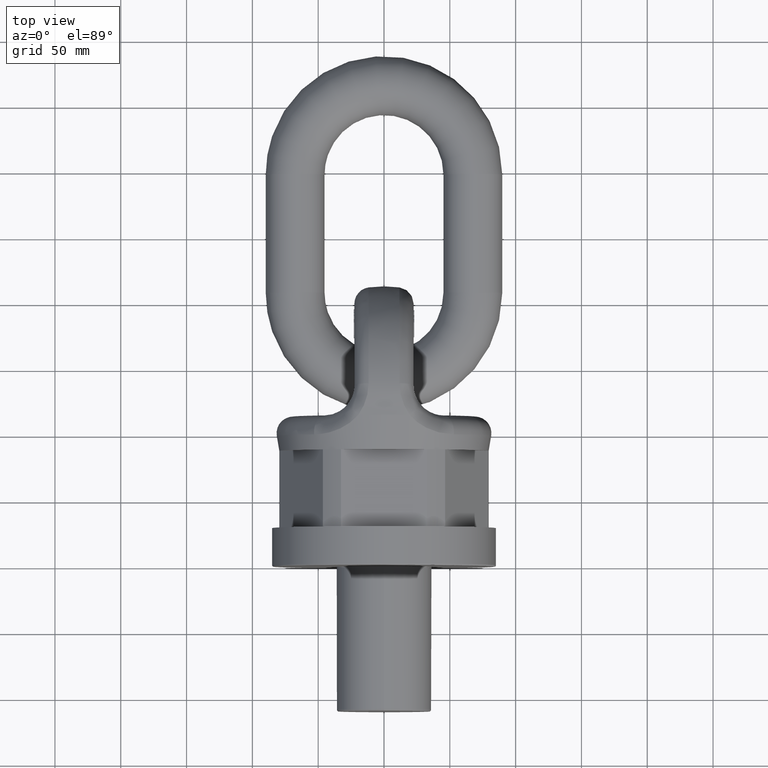
[diagram: clean part render]
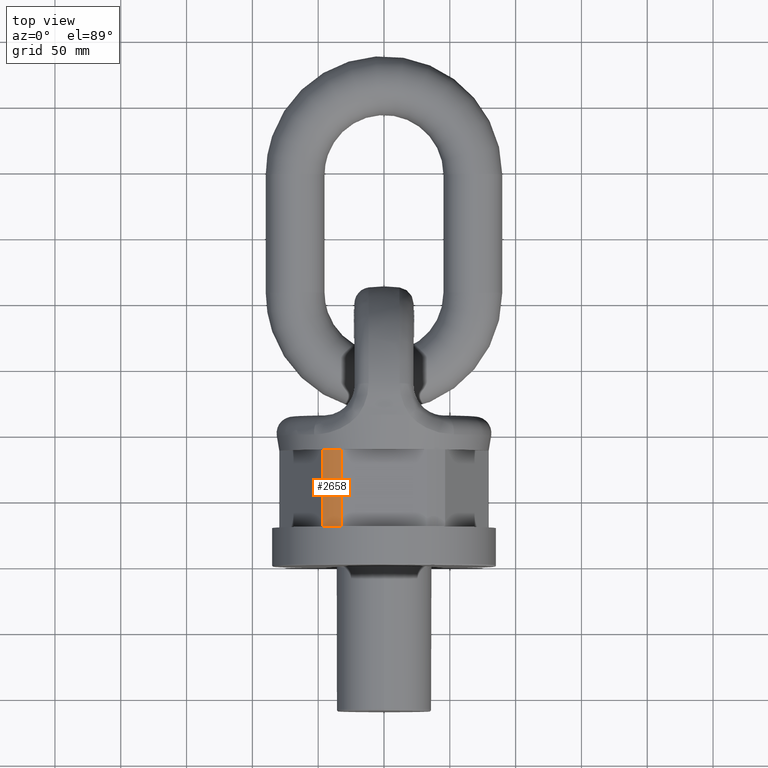
[diagram: same view with one face highlighted and labeled with its STEP entity id]
A machine part, top view. The second image highlights one B-rep face of the part: STEP entity #2658.
In plain terms, the highlighted cylindrical surface (partial cylindrical patch) has radius 79.53 mm, axis along (-0, 1, 0).
Its self-contained STEP definition (entity closure, byte-faithful):
#1816=FACE_OUTER_BOUND('',#3081,.T.);
#2024=CYLINDRICAL_SURFACE('',#5633,79.5299995808709);
#2048=LINE('',#6607,#2304);
#2062=LINE('',#6635,#2318);
#2304=VECTOR('',#5844,1.);
#2318=VECTOR('',#5868,1.);
#2658=ADVANCED_FACE('',(#1816),#2024,.T.);
#3081=EDGE_LOOP('',(#3416,#3417,#3418,#3419));
#3416=ORIENTED_EDGE('',*,*,#4947,.F.);
#3417=ORIENTED_EDGE('',*,*,#4972,.T.);
#3418=ORIENTED_EDGE('',*,*,#4977,.T.);
#3419=ORIENTED_EDGE('',*,*,#4958,.T.);
#4549=VERTEX_POINT('',#6583);
#4550=VERTEX_POINT('',#6585);
#4560=VERTEX_POINT('',#6608);
#4569=VERTEX_POINT('',#6636);
#4947=EDGE_CURVE('',#4549,#4550,#5541,.T.);
#4958=EDGE_CURVE('',#4560,#4550,#2048,.T.);
#4972=EDGE_CURVE('',#4549,#4569,#2062,.T.);
#4977=EDGE_CURVE('',#4569,#4560,#5549,.T.);
#5541=CIRCLE('',#5609,79.5299995808709);
#5549=CIRCLE('',#5625,79.5299995808709);
#5609=AXIS2_PLACEMENT_3D('',#6584,#5823,#5824);
#5625=AXIS2_PLACEMENT_3D('',#6643,#5877,#5878);
#5633=AXIS2_PLACEMENT_3D('',#6651,#5893,#5894);
#5823=DIRECTION('',(5.39262084851817E-17,-1.,0.));
#5824=DIRECTION('',(-1.,-4.36243803626035E-17,0.));
#5844=DIRECTION('',(2.4492935982947E-17,-1.,0.));
#5868=DIRECTION('',(-2.4492935982947E-17,1.,0.));
#5877=DIRECTION('',(0.,-1.,0.));
#5878=DIRECTION('',(0.,0.,-1.));
#5893=DIRECTION('',(-2.4492935982947E-17,1.,0.));
#5894=DIRECTION('',(-1.,-2.4492935982947E-17,0.));
#6583=CARTESIAN_POINT('',(-32.692060707966,29.3333333333333,72.5));
#6584=CARTESIAN_POINT('',(-7.1845945549978E-16,29.3333333333333,0.));
#6585=CARTESIAN_POINT('',(-46.4408114203888,29.3333333333333,64.5621550751616));
#6607=CARTESIAN_POINT('',(-46.4408114203888,4.00362275035414E-16,64.5621550751616));
#6608=CARTESIAN_POINT('',(-46.4408114203888,88.,64.5621550751616));
#6635=CARTESIAN_POINT('',(-32.692060707966,-8.00724550070829E-16,72.5));
#6636=CARTESIAN_POINT('',(-32.692060707966,88.,72.5));
#6643=CARTESIAN_POINT('',(-2.15537836649934E-15,88.,0.));
#6651=CARTESIAN_POINT('',(0.,0.,0.));